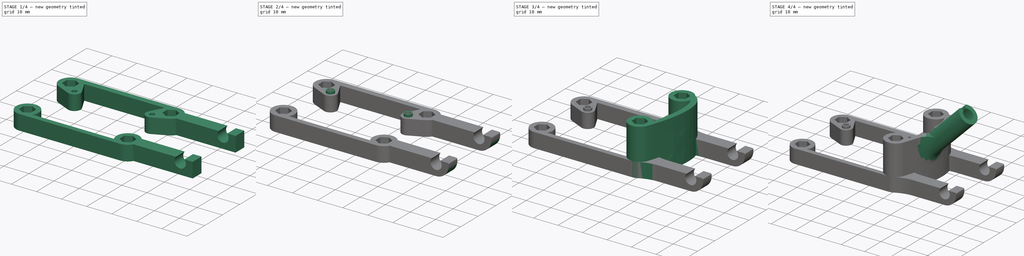
[diagram: build sequence overview — one tinted view per stage of 4, left to right]
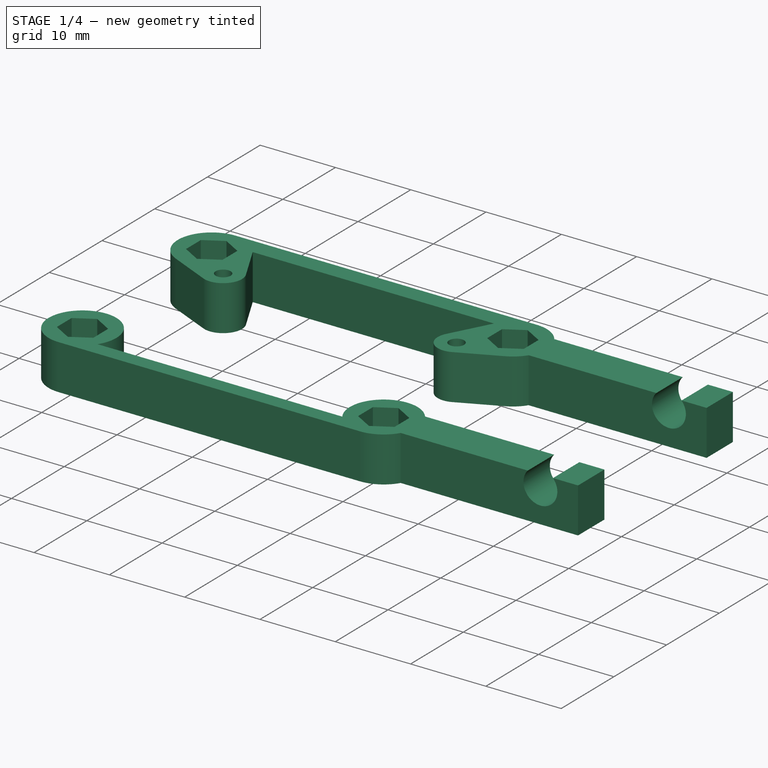
[diagram: stage 1 of 4 — iso view after this stage's code; geometry added in this stage tinted green]
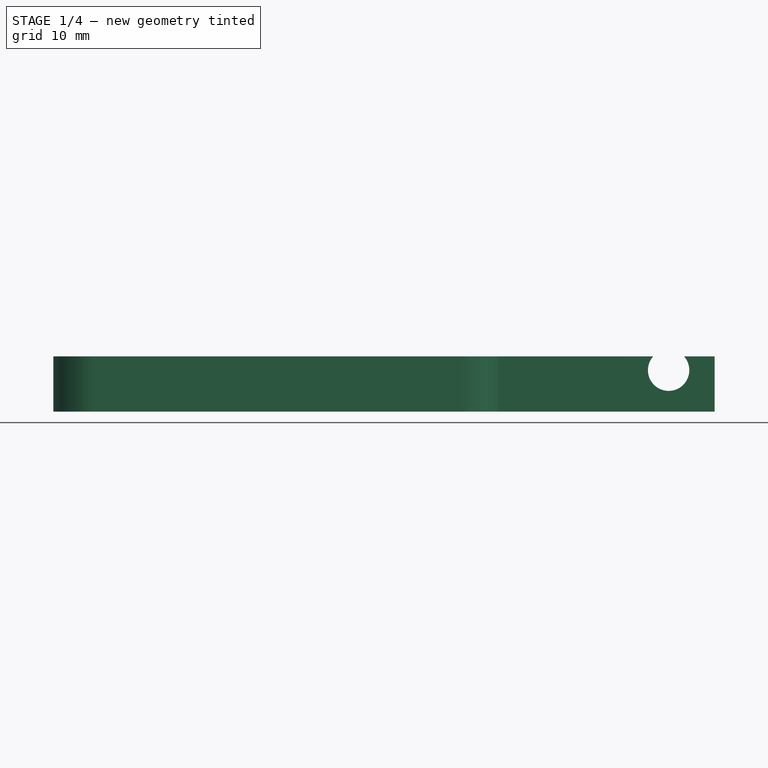
[diagram: stage 1 of 4 — front view after this stage's code; geometry added in this stage tinted green]
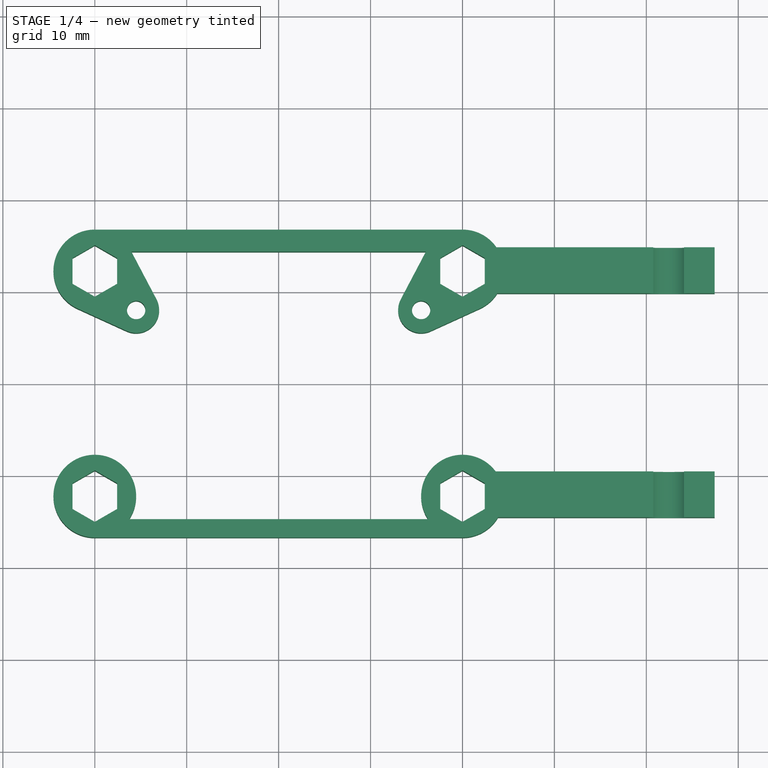
[diagram: stage 1 of 4 — top view after this stage's code; geometry added in this stage tinted green]
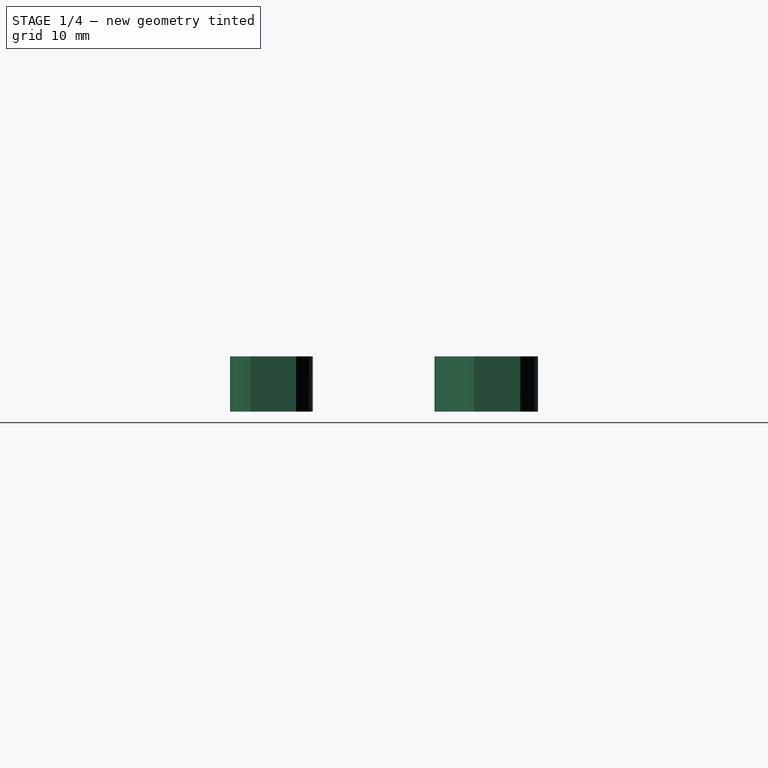
[diagram: stage 1 of 4 — right view after this stage's code; geometry added in this stage tinted green]
FCSTD DOCUMENT  (FreeCAD 1.0R39285 (Git))
Label: vtxHolderV3
License: All rights reserved
LicenseURL: https://en.wikipedia.org/wiki/All_rights_reserved
objects: Sketcher::SketchObject×8, PartDesign::Pad×5, PartDesign::Fillet×5, PartDesign::SubShapeBinder×2, PartDesign::Pocket×2, PartDesign::Body×2
note: 56 computed .brp shape members not serialized (recipe doc carries the construction recipe); baked Part::Feature solids carry a one-line shape summary decoded from their .brp

FEATURE [PartDesign::Body] Body001  label="VtxAntennaHolder"
  AllowCompound = true
  Group = -> [Binder,Sketch002,Pad,Sketch003,Pad001,Sketch004,Pocket,Fillet]
  Origin = -> Origin001
  Tip = -> Fillet
FEATURE [PartDesign::SubShapeBinder] Binder001
  BindCopyOnChange = 0
  BindMode = 0
  ClaimChildren = false
  Context = -> Body [Binder001.]
  Fuse = false
  MakeFace = false
  OffsetFill = false
  OffsetIntersection = false
  OffsetJoinType = 0
  OffsetOpenResult = false
  PartialLoad = false
  Refine = true
  Relative = true
  Support = -> [Sketch]
  _Version = 2
FEATURE [Sketcher::SketchObject] Sketch005
  ArcFitTolerance = 1e-06
  AttachmentSupport = -> [XY_Plane]
  ExternalGeometry = -> [Binder001]
  FullyConstrained = true
  MakeInternals = false
  MapMode = 5
  sketch-geometry (44):
    g0: ArcOfCircle CenterX=-20 CenterY=12.25 CenterZ=0 NormalX=0 NormalY=0 NormalZ=1 AngleXU=0 Radius=4.5 StartAngle=1.5708 EndAngle=4.28458
    g1: ArcOfCircle CenterX=-15.5 CenterY=8 CenterZ=0 NormalX=0 NormalY=0 NormalZ=1 AngleXU=0 Radius=2.5 StartAngle=4.28458 EndAngle=6.76813
    g2: LineSegment StartX=-16.0188 StartY=14.3477 StartZ=0 EndX=-13.2882 EndY=9.16539 EndZ=0
    g3: LineSegment StartX=-21.867 StartY=8.15556 StartZ=0 EndX=-16.5372 EndY=5.72531 EndZ=0
    g4: LineSegment StartX=-17.5751 StartY=13.65 StartZ=0 EndX=-20 EndY=15.05 EndZ=0
    g5: LineSegment StartX=-20 StartY=15.05 StartZ=0 EndX=-22.4249 EndY=13.65 EndZ=0
    g6: LineSegment StartX=-22.4249 StartY=13.65 StartZ=0 EndX=-22.4249 EndY=10.85 EndZ=0
    g7: LineSegment StartX=-22.4249 StartY=10.85 StartZ=0 EndX=-20 EndY=9.45 EndZ=0
    g8: LineSegment StartX=-20 StartY=9.45 StartZ=0 EndX=-17.5751 EndY=10.85 EndZ=0
    g9: LineSegment StartX=-17.5751 StartY=10.85 StartZ=0 EndX=-17.5751 EndY=13.65 EndZ=0
    g10: Circle [constr] CenterX=-20 CenterY=12.25 CenterZ=0 NormalX=0 NormalY=0 NormalZ=1 AngleXU=0 Radius=2.8
    g11: Circle CenterX=-15.5 CenterY=8 CenterZ=0 NormalX=0 NormalY=0 NormalZ=1 AngleXU=0 Radius=1
    g12: ArcOfCircle CenterX=20 CenterY=12.25 CenterZ=0 NormalX=0 NormalY=0 NormalZ=1 AngleXU=0 Radius=4.5 StartAngle=5.1402 EndAngle=7.85399
    g13: ArcOfCircle CenterX=15.5 CenterY=8 CenterZ=0 NormalX=0 NormalY=0 NormalZ=1 AngleXU=0 Radius=2.5 StartAngle=2.65665 EndAngle=5.1402
    g14: LineSegment StartX=21.867 StartY=8.15556 StartZ=0 EndX=16.5372 EndY=5.72531 EndZ=0
    g15: LineSegment StartX=16.0188 StartY=14.3477 StartZ=0 EndX=13.2882 EndY=9.16539 EndZ=0
    g16: Circle CenterX=15.5 CenterY=8 CenterZ=0 NormalX=0 NormalY=0 NormalZ=1 AngleXU=0 Radius=1
    g17: LineSegment StartX=22.4249 StartY=13.65 StartZ=0 EndX=20 EndY=15.05 EndZ=0
    g18: LineSegment StartX=20 StartY=15.05 StartZ=0 EndX=17.5751 EndY=13.65 EndZ=0
    g19: LineSegment StartX=17.5751 StartY=13.65 StartZ=0 EndX=17.5751 EndY=10.85 EndZ=0
    g20: LineSegment StartX=17.5751 StartY=10.85 StartZ=0 EndX=20 EndY=9.45 EndZ=0
    g21: LineSegment StartX=20 StartY=9.45 StartZ=0 EndX=22.4249 EndY=10.85 EndZ=0
    g22: LineSegment StartX=22.4249 StartY=10.85 StartZ=0 EndX=22.4249 EndY=13.65 EndZ=0
    g23: Circle [constr] CenterX=20 CenterY=12.25 CenterZ=0 NormalX=0 NormalY=0 NormalZ=1 AngleXU=0 Radius=2.8
    g24: ArcOfCircle CenterX=-20 CenterY=-12.25 CenterZ=0 NormalX=0 NormalY=0 NormalZ=1 AngleXU=0 Radius=4.5 StartAngle=5.69415 EndAngle=10.9956
    g25: ArcOfCircle CenterX=20 CenterY=-12.25 CenterZ=0 NormalX=0 NormalY=0 NormalZ=1 AngleXU=0 Radius=4.5 StartAngle=4.71239 EndAngle=10.0138
    g26: LineSegment StartX=-17.5751 StartY=-10.85 StartZ=0 EndX=-20 EndY=-9.45 EndZ=0
    g27: LineSegment StartX=-20 StartY=-9.45 StartZ=0 EndX=-22.4249 EndY=-10.85 EndZ=0
    g28: LineSegment StartX=-22.4249 StartY=-10.85 StartZ=0 EndX=-22.4249 EndY=-13.65 EndZ=0
    g29: LineSegment StartX=-22.4249 StartY=-13.65 StartZ=0 EndX=-20 EndY=-15.05 EndZ=0
    g30: LineSegment StartX=-20 StartY=-15.05 StartZ=0 EndX=-17.5751 EndY=-13.65 EndZ=0
    g31: LineSegment StartX=-17.5751 StartY=-13.65 StartZ=0 EndX=-17.5751 EndY=-10.85 EndZ=0
    g32: Circle [constr] CenterX=-20 CenterY=-12.25 CenterZ=0 NormalX=0 NormalY=0 NormalZ=1 AngleXU=0 Radius=2.8
    g33: LineSegment StartX=22.4249 StartY=-10.85 StartZ=0 EndX=20 EndY=-9.45 EndZ=0
    g34: LineSegment StartX=20 StartY=-9.45 StartZ=0 EndX=17.5751 EndY=-10.85 EndZ=0
    g35: LineSegment StartX=17.5751 StartY=-10.85 StartZ=0 EndX=17.5751 EndY=-13.65 EndZ=0
    g36: LineSegment StartX=17.5751 StartY=-13.65 StartZ=0 EndX=20 EndY=-15.05 EndZ=0
    g37: LineSegment StartX=20 StartY=-15.05 StartZ=0 EndX=22.4249 EndY=-13.65 EndZ=0
    g38: LineSegment StartX=22.4249 StartY=-13.65 StartZ=0 EndX=22.4249 EndY=-10.85 EndZ=0
    g39: Circle [constr] CenterX=20 CenterY=-12.25 CenterZ=0 NormalX=0 NormalY=0 NormalZ=1 AngleXU=0 Radius=2.8
    g40: LineSegment StartX=-20 StartY=-16.75 StartZ=0 EndX=20 EndY=-16.75 EndZ=0
    g41: LineSegment StartX=-16.2583 StartY=-14.75 StartZ=0 EndX=16.2583 EndY=-14.75 EndZ=0
    g42: LineSegment StartX=-20 StartY=16.75 StartZ=0 EndX=20 EndY=16.75 EndZ=0
    g43: LineSegment StartX=-16.0188 StartY=14.3477 StartZ=0 EndX=16.0188 EndY=14.3477 EndZ=0
  constraints (96):
    c: Tangent(g0,g3) = -1.5708
    c: Tangent(g1,g2) = 1.5708
    c: Tangent(g1,g3) = -1.5708
    c: Coincident(g0,g-6)
    c: Coincident(g1,g-4)
    c: Equal(g0,g-6)
    c: Equal(g1,g-4)
    c: Coincident(g4,g5)
    c: Coincident(g5,g6)
    c: Coincident(g6,g7)
    c: Coincident(g7,g8)
    c: Coincident(g8,g9)
    c: Coincident(g9,g4)
    c: Equal(g4, g5-g9) x5
    c: PointOnObject(g4,g10)
    c: PointOnObject(g5,g10)
    c: PointOnObject(g6,g10)
    c: PointOnObject(g7,g10)
    c: PointOnObject(g8,g10)
    c: PointOnObject(g9,g10)
    c: Coincident(g10,g0)
    c: Coincident(g9,g-7)
    c: Coincident(g11,g-8)
    c: Equal(g11,g-8)
    c: Tangent(g12,g14) = 1.5708
    c: Tangent(g13,g14) = 1.5708
    c: Tangent(g13,g15) = -1.5708
    c: Coincident(g12,g-9)
    c: Coincident(g13,g-11)
    c: Equal(g12,g-9)
    c: Equal(g13,g-11)
    c: Equal(g16,g-10)
    c: Coincident(g16,g13)
    c: Coincident(g17,g18)
    c: Coincident(g18,g19)
    c: Coincident(g19,g20)
    c: Coincident(g20,g21)
    c: Coincident(g21,g22)
    c: Coincident(g22,g17)
    c: Equal(g17, g18-g22) x5
    c: PointOnObject(g17,g23)
    c: PointOnObject(g18,g23)
    c: PointOnObject(g19,g23)
    c: PointOnObject(g20,g23)
    c: PointOnObject(g21,g23)
    c: PointOnObject(g22,g23)
    c: Coincident(g23,g12)
    c: Coincident(g22,g-12)
    c: Coincident(g24,g-16)
    c: Equal(g24,g-16)
    c: Coincident(g25,g-13)
    c: Equal(g25,g-13)
    c: Coincident(g26,g27)
    c: Coincident(g27,g28)
    c: Coincident(g28,g29)
    c: Coincident(g29,g30)
    c: Coincident(g30,g31)
    c: Coincident(g31,g26)
    c: Equal(g26, g27-g31) x5
    c: PointOnObject(g26,g32)
    c: PointOnObject(g27,g32)
    c: PointOnObject(g28,g32)
    c: PointOnObject(g29,g32)
    c: PointOnObject(g30,g32)
    c: PointOnObject(g31,g32)
    c: Coincident(g32,g24)
    c: Coincident(g31,g-15)
    c: Coincident(g33,g34)
    c: Coincident(g34,g35)
    c: Coincident(g35,g36)
    c: Coincident(g36,g37)
    c: Coincident(g37,g38)
    c: Coincident(g38,g33)
    c: Equal(g33, g34-g38) x5
    c: PointOnObject(g33,g39)
    c: PointOnObject(g34,g39)
    c: PointOnObject(g35,g39)
    c: PointOnObject(g36,g39)
    c: PointOnObject(g37,g39)
    c: PointOnObject(g38,g39)
    c: Coincident(g39,g25)
    c: Coincident(g38,g-14)
    c: Horizontal(g41)
    c: Distance(g40,g41) = 2
    c: Coincident(g25,g41)
    c: Coincident(g25,g40)
    c: Tangent(g24,g40) = -1.5708
    c: Coincident(g24,g41)
    c: Horizontal(g40)
    c: Horizontal(g42)
    c: Coincident(g12,g42)
    c: Tangent(g0,g42) = 1.5708
    c: Coincident(g15,g43)
    c: Coincident(g15,g-9)
    c: Coincident(g2,g43)
    c: Coincident(g2,g-6)
FEATURE [PartDesign::Pad] Pad002
  Direction = (0,0,1)
  Length = 6
  Length2 = 10
  Profile = -> Sketch005
  ReferenceAxis = -> Sketch005 [N_Axis]
  Refine = true
  Suppressed = false
  Type = 0
FEATURE [Sketcher::SketchObject] Sketch006
  ArcFitTolerance = 1e-06
  AttachmentSupport = -> [Pad002]
  ExternalGeometry = -> [Pad002]
  FullyConstrained = false
  MakeInternals = false
  MapMode = 45
  Placement = pos=(22.4249,-1.8e-15,3) rot=(0.707107,0,0.707107;3.14159rad)
  sketch-geometry (8):
    g0: LineSegment StartX=-3 StartY=-9.82109 StartZ=0 EndX=-3 EndY=-14.8211 EndZ=0
    g1: LineSegment StartX=-3 StartY=-14.8211 StartZ=0 EndX=3 EndY=-14.8211 EndZ=0
    g2: LineSegment StartX=3 StartY=-14.8211 StartZ=0 EndX=3 EndY=-9.82109 EndZ=0
    g3: LineSegment StartX=3 StartY=-9.82109 StartZ=0 EndX=-3 EndY=-9.82109 EndZ=0
    g4: LineSegment StartX=-3 StartY=14.5563 StartZ=0 EndX=-3 EndY=9.55633 EndZ=0
    g5: LineSegment StartX=-3 StartY=9.55633 StartZ=0 EndX=3 EndY=9.55633 EndZ=0
    g6: LineSegment StartX=3 StartY=9.55633 StartZ=0 EndX=3 EndY=14.5563 EndZ=0
    g7: LineSegment StartX=3 StartY=14.5563 StartZ=0 EndX=-3 EndY=14.5563 EndZ=0
  constraints (22):
    c: Coincident(g0,g1)
    c: Coincident(g1,g2)
    c: Coincident(g2,g3)
    c: Coincident(g3,g0)
    c: Vertical(g0)
    c: Vertical(g2)
    c: Horizontal(g1)
    c: Horizontal(g3)
    c: PointOnObject(g-5,g0)
    c: PointOnObject(g-6,g2)
    c: DistanceY(g2,g2) = 5
    c: Coincident(g4,g5)
    c: Coincident(g5,g6)
    c: Coincident(g6,g7)
    c: Coincident(g7,g4)
    c: Vertical(g4)
    c: Vertical(g6)
    c: Horizontal(g5)
    c: Horizontal(g7)
    c: Equal(g2,g6)
    c: PointOnObject(g-3,g4)
    c: PointOnObject(g-4,g6)
FEATURE [PartDesign::Pad] Pad003
  BaseFeature = -> Pad002
  Direction = (1,0,-2e-16)
  Length = 25
  Length2 = 10
  Profile = -> Sketch006
  ReferenceAxis = -> Sketch006 [N_Axis]
  Refine = true
  Suppressed = false
  Type = 0
FEATURE [Sketcher::SketchObject] Sketch007
  ArcFitTolerance = 1e-06
  AttachmentSupport = -> [Pad003]
  ExternalGeometry = -> [Pad003]
  FullyConstrained = true
  MakeInternals = false
  MapMode = 5
  Placement = pos=(0,-14.5563,0) rot=(1,0,0;1.5708rad)
  sketch-geometry (1):
    g0: Circle CenterX=42.4249 CenterY=4.5 CenterZ=0 NormalX=0 NormalY=0 NormalZ=1 AngleXU=0 Radius=2.25
  constraints (3):
    c: Diameter(g0) = 4.5
    c: Distance(g0,g-3) = 5
    c: Distance(g0,g-1) = 4.5
FEATURE [PartDesign::Pocket] Pocket001
  BaseFeature = -> Pad003
  Direction = (0,1,-2e-16)
  Length = 0
  Length2 = 5
  Profile = -> Sketch007
  ReferenceAxis = -> Sketch007 [N_Axis]
  Refine = true
  Suppressed = false
  Type = 3
  UpToFace = -> Pad003 [Face12]
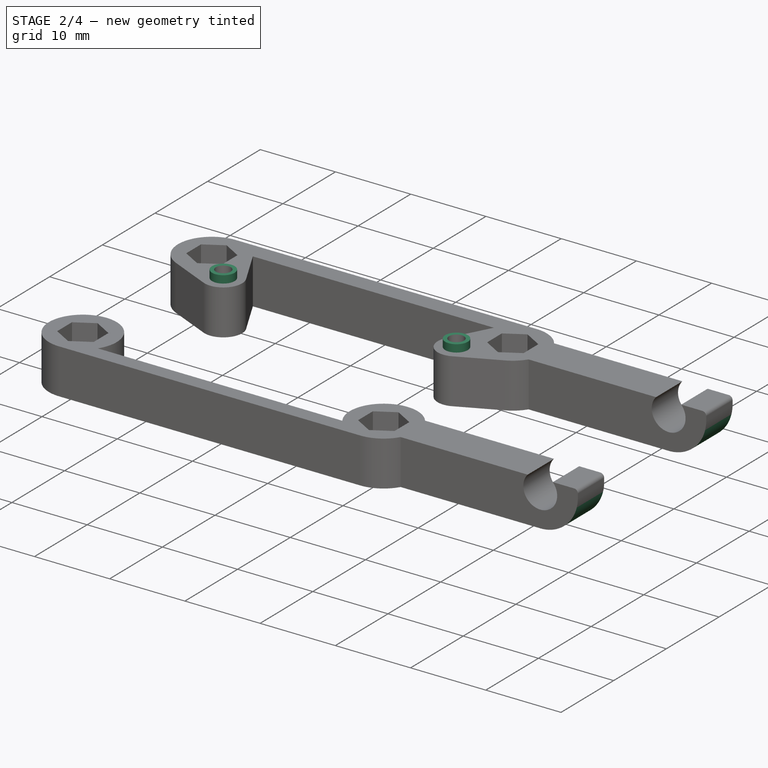
[diagram: stage 2 of 4 — iso view after this stage's code; geometry added in this stage tinted green]
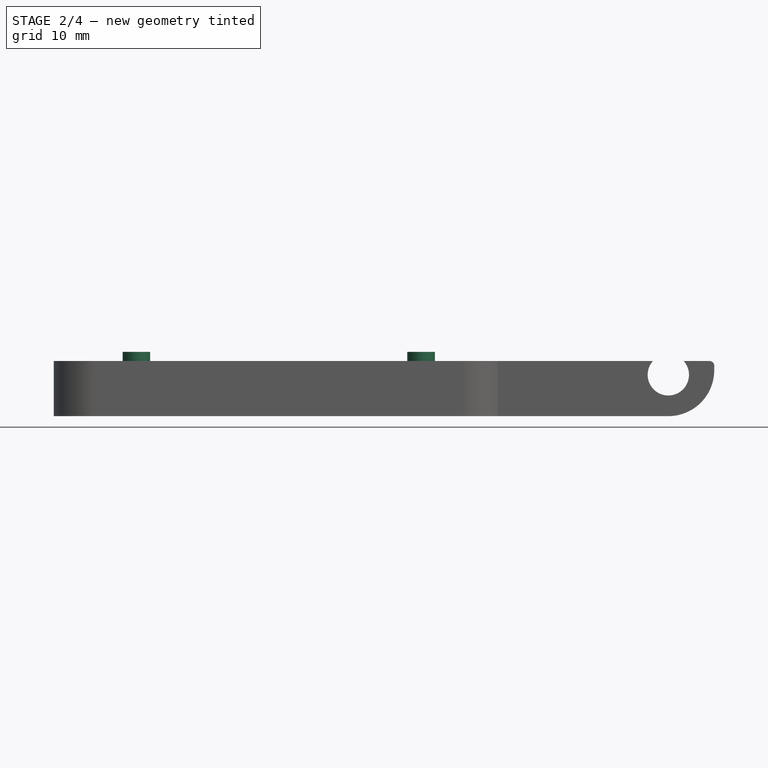
[diagram: stage 2 of 4 — front view after this stage's code; geometry added in this stage tinted green]
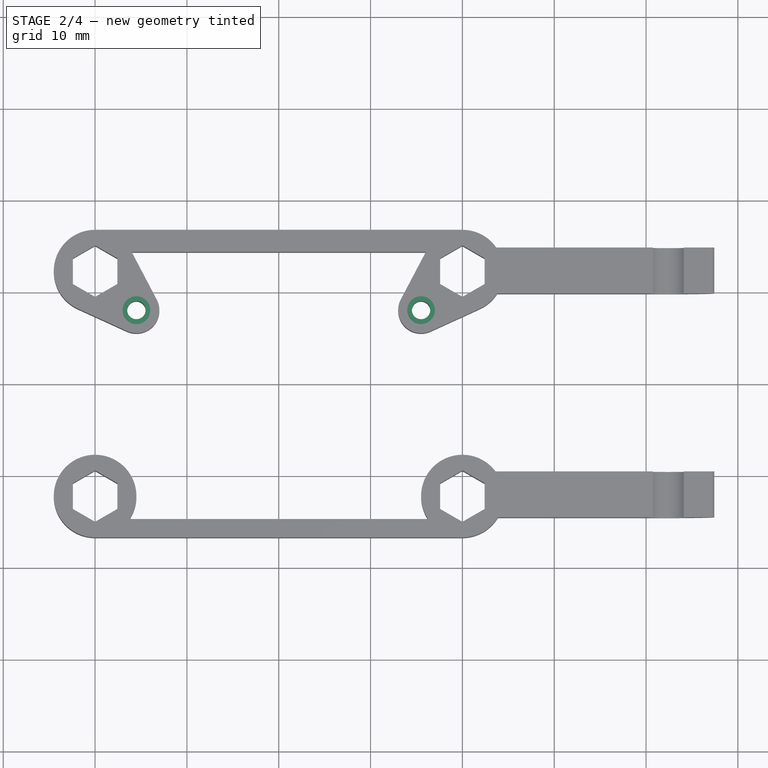
[diagram: stage 2 of 4 — top view after this stage's code; geometry added in this stage tinted green]
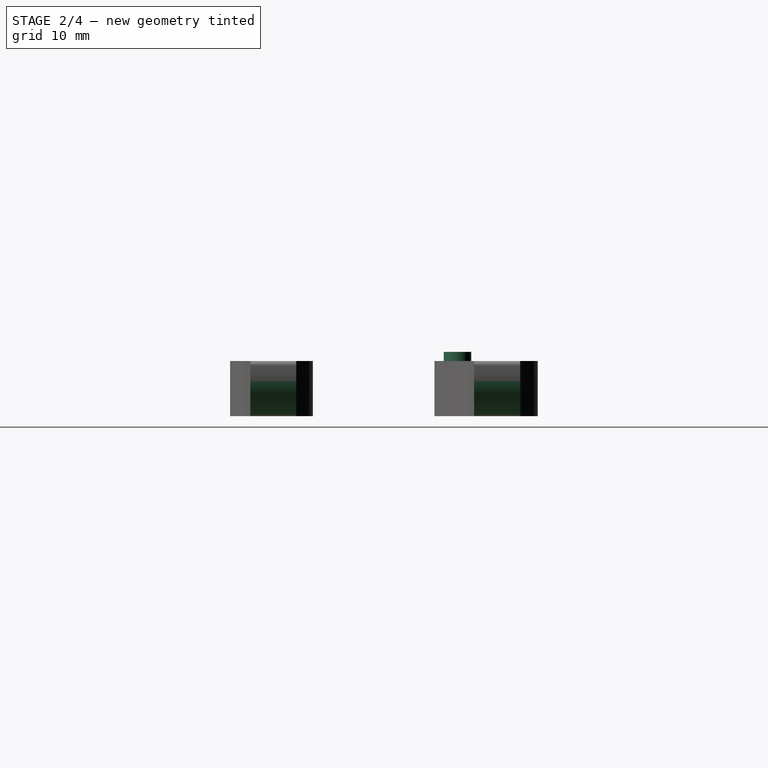
[diagram: stage 2 of 4 — right view after this stage's code; geometry added in this stage tinted green]
FEATURE [PartDesign::Fillet] Fillet001
  Base = -> Pocket001 [Edge105,Edge8]
  BaseFeature = -> Pocket001
  Radius = 5
  Refine = true
  SupportTransform = false
  Suppressed = false
  UseAllEdges = false
FEATURE [PartDesign::Fillet] Fillet002
  Base = -> Fillet001 [Edge69,Edge164]
  BaseFeature = -> Fillet001
  Radius = 0.5
  Refine = true
  SupportTransform = false
  Suppressed = false
  UseAllEdges = false
FEATURE [Sketcher::SketchObject] Sketch008
  ArcFitTolerance = 1e-06
  FullyConstrained = true
  MakeInternals = false
  MapMode = 5
  Placement = pos=(0,0,6) rot=(0,0,1;0rad)
  sketch-geometry (4):
    g0: Circle CenterX=-15.5 CenterY=8 CenterZ=0 NormalX=0 NormalY=0 NormalZ=1 AngleXU=0 Radius=1
    g1: Circle CenterX=15.5 CenterY=8 CenterZ=0 NormalX=0 NormalY=0 NormalZ=1 AngleXU=0 Radius=1
    g2: Circle CenterX=15.5 CenterY=8 CenterZ=0 NormalX=0 NormalY=0 NormalZ=1 AngleXU=0 Radius=1.5
    g3: Circle CenterX=-15.5 CenterY=8 CenterZ=0 NormalX=0 NormalY=0 NormalZ=1 AngleXU=0 Radius=1.5
  constraints (8):
    c: Coincident(g0,g-3)
    c: Equal(g0,g-3)
    c: Coincident(g1,g-4)
    c: Equal(g1,g-4)
    c: Diameter(g2) = 3
    c: Coincident(g2,g1)
    c: Coincident(g3,g0)
    c: Equal(g2,g3)
FEATURE [PartDesign::Pad] Pad004
  BaseFeature = -> Fillet002
  Direction = (0,0,1)
  Length = 1
  Length2 = 10
  Profile = -> Sketch008
  ReferenceAxis = -> Sketch008 [N_Axis]
  Refine = true
  Suppressed = false
  Type = 0
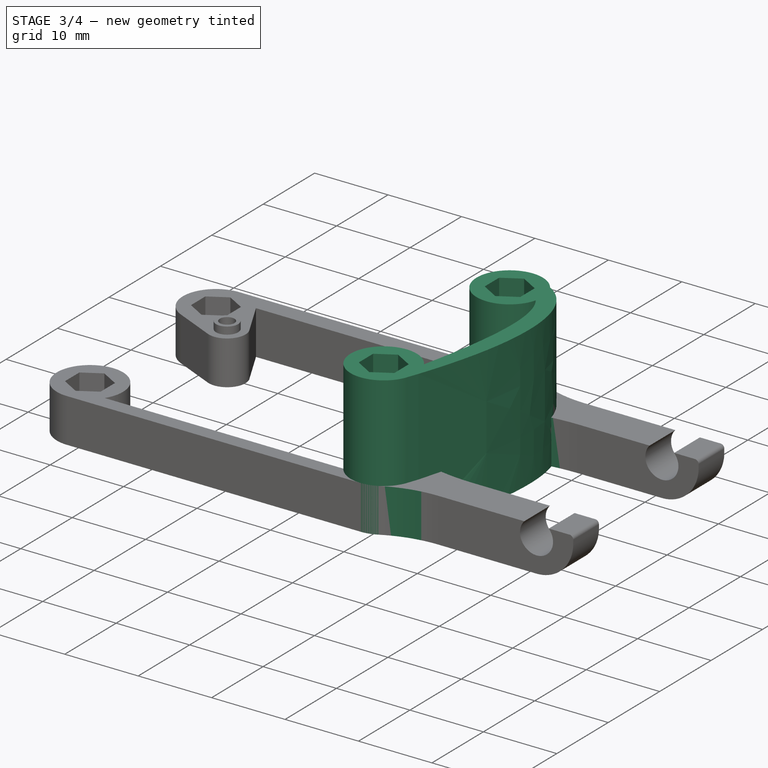
[diagram: stage 3 of 4 — iso view after this stage's code; geometry added in this stage tinted green]
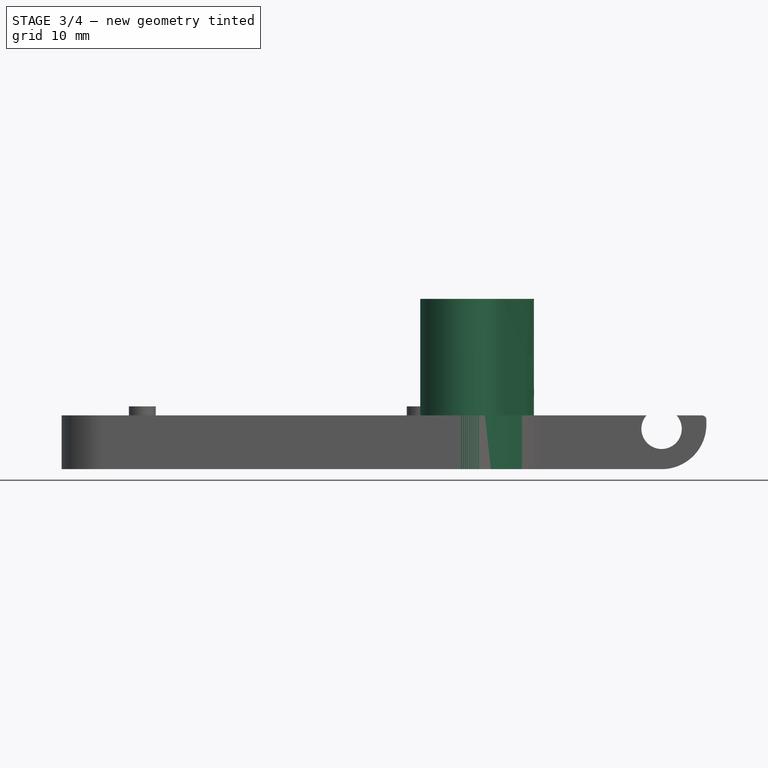
[diagram: stage 3 of 4 — front view after this stage's code; geometry added in this stage tinted green]
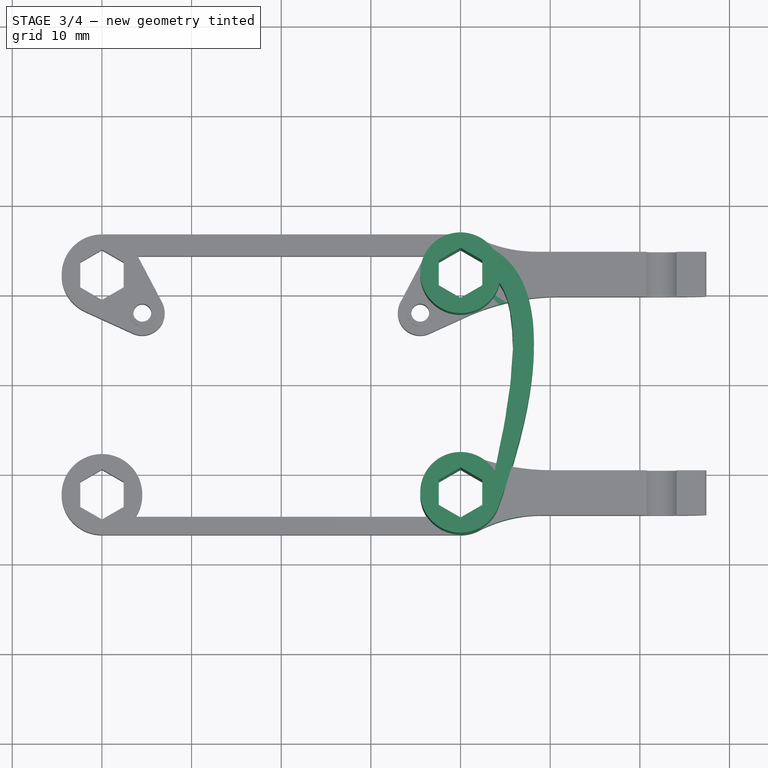
[diagram: stage 3 of 4 — top view after this stage's code; geometry added in this stage tinted green]
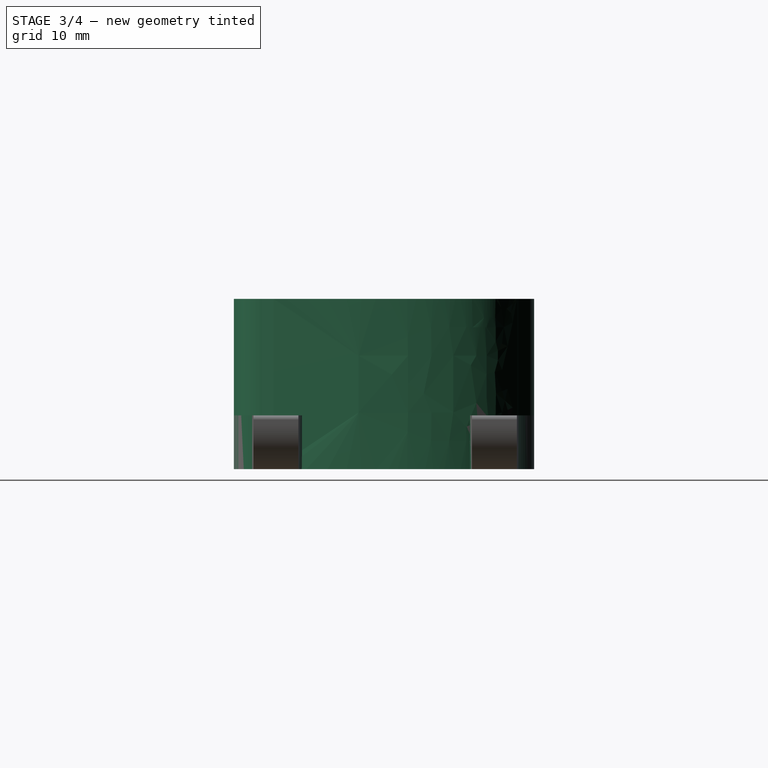
[diagram: stage 3 of 4 — right view after this stage's code; geometry added in this stage tinted green]
FEATURE [Sketcher::SketchObject] Sketch  label="MasterSketch"
  ArcFitTolerance = 1e-06
  FullyConstrained = true
  MakeInternals = false
  MapMode = 5
  sketch-geometry (62):
    g0: LineSegment [constr] StartX=-20 StartY=12.25 StartZ=0 EndX=-20 EndY=-12.25 EndZ=0
    g1: LineSegment [constr] StartX=-20 StartY=-12.25 StartZ=0 EndX=20 EndY=-12.25 EndZ=0
    g2: LineSegment [constr] StartX=20 StartY=-12.25 StartZ=0 EndX=20 EndY=12.25 EndZ=0
    g3: LineSegment [constr] StartX=20 StartY=12.25 StartZ=0 EndX=-20 EndY=12.25 EndZ=0
    g4: LineSegment StartX=20 StartY=15.05 StartZ=0 EndX=17.5751 EndY=13.65 EndZ=0
    g5: LineSegment StartX=17.5751 StartY=13.65 StartZ=0 EndX=17.5751 EndY=10.85 EndZ=0
    g6: LineSegment StartX=17.5751 StartY=10.85 StartZ=0 EndX=20 EndY=9.45 EndZ=0
    g7: LineSegment StartX=20 StartY=9.45 StartZ=0 EndX=22.4249 EndY=10.85 EndZ=0
    g8: LineSegment StartX=22.4249 StartY=10.85 StartZ=0 EndX=22.4249 EndY=13.65 EndZ=0
    g9: LineSegment StartX=22.4249 StartY=13.65 StartZ=0 EndX=20 EndY=15.05 EndZ=0
    g10: Circle [constr] CenterX=20 CenterY=12.25 CenterZ=0 NormalX=0 NormalY=0 NormalZ=1 AngleXU=0 Radius=2.8
    g11: LineSegment StartX=-20 StartY=15.05 StartZ=0 EndX=-22.4249 EndY=13.65 EndZ=0
    g12: LineSegment StartX=-22.4249 StartY=13.65 StartZ=0 EndX=-22.4249 EndY=10.85 EndZ=0
    g13: LineSegment StartX=-22.4249 StartY=10.85 StartZ=0 EndX=-20 EndY=9.45 EndZ=0
    g14: LineSegment StartX=-20 StartY=9.45 StartZ=0 EndX=-17.5751 EndY=10.85 EndZ=0
    g15: LineSegment StartX=-17.5751 StartY=10.85 StartZ=0 EndX=-17.5751 EndY=13.65 EndZ=0
    g16: LineSegment StartX=-17.5751 StartY=13.65 StartZ=0 EndX=-20 EndY=15.05 EndZ=0
    g17: Circle [constr] CenterX=-20 CenterY=12.25 CenterZ=0 NormalX=0 NormalY=0 NormalZ=1 AngleXU=0 Radius=2.8
    g18: LineSegment StartX=-20 StartY=-15.05 StartZ=0 EndX=-17.5751 EndY=-13.65 EndZ=0
    g19: LineSegment StartX=-17.5751 StartY=-13.65 StartZ=0 EndX=-17.5751 EndY=-10.85 EndZ=0
    g20: LineSegment StartX=-17.5751 StartY=-10.85 StartZ=0 EndX=-20 EndY=-9.45 EndZ=0
    g21: LineSegment StartX=-20 StartY=-9.45 StartZ=0 EndX=-22.4249 EndY=-10.85 EndZ=0
    g22: LineSegment StartX=-22.4249 StartY=-10.85 StartZ=0 EndX=-22.4249 EndY=-13.65 EndZ=0
    g23: LineSegment StartX=-22.4249 StartY=-13.65 StartZ=0 EndX=-20 EndY=-15.05 EndZ=0
    g24: Circle [constr] CenterX=-20 CenterY=-12.25 CenterZ=0 NormalX=0 NormalY=0 NormalZ=1 AngleXU=0 Radius=2.8
    g25: LineSegment StartX=20 StartY=-15.05 StartZ=0 EndX=22.4249 EndY=-13.65 EndZ=0
    g26: LineSegment StartX=22.4249 StartY=-13.65 StartZ=0 EndX=22.4249 EndY=-10.85 EndZ=0
    g27: LineSegment StartX=22.4249 StartY=-10.85 StartZ=0 EndX=20 EndY=-9.45 EndZ=0
    g28: LineSegment StartX=20 StartY=-9.45 StartZ=0 EndX=17.5751 EndY=-10.85 EndZ=0
    g29: LineSegment StartX=17.5751 StartY=-10.85 StartZ=0 EndX=17.5751 EndY=-13.65 EndZ=0
    g30: LineSegment StartX=17.5751 StartY=-13.65 StartZ=0 EndX=20 EndY=-15.05 EndZ=0
    g31: Circle [constr] CenterX=20 CenterY=-12.25 CenterZ=0 NormalX=0 NormalY=0 NormalZ=1 AngleXU=0 Radius=2.8
    g32: LineSegment [constr] StartX=-18 StartY=10 StartZ=0 EndX=-18 EndY=-10 EndZ=0
    g33: LineSegment [constr] StartX=-17 StartY=-11 StartZ=0 EndX=17 EndY=-11 EndZ=0
    g34: LineSegment [constr] StartX=18 StartY=-10 StartZ=0 EndX=18 EndY=10 EndZ=0
    g35: LineSegment [constr] StartX=17 StartY=11 StartZ=0 EndX=-17 EndY=11 EndZ=0
    g36: ArcOfCircle [constr] CenterX=-17 CenterY=10 CenterZ=0 NormalX=0 NormalY=0 NormalZ=1 AngleXU=0 Radius=1 StartAngle=1.5708 EndAngle=3.14159
    g37: ArcOfCircle [constr] CenterX=-17 CenterY=-10 CenterZ=0 NormalX=0 NormalY=0 NormalZ=1 AngleXU=0 Radius=1 StartAngle=3.14159 EndAngle=4.71239
    g38: ArcOfCircle [constr] CenterX=17 CenterY=-10 CenterZ=0 NormalX=0 NormalY=0 NormalZ=1 AngleXU=0 Radius=1 StartAngle=4.71239 EndAngle=6.28319
    g39: ArcOfCircle [constr] CenterX=17 CenterY=10 CenterZ=0 NormalX=0 NormalY=0 NormalZ=1 AngleXU=0 Radius=1 StartAngle=5e-16 EndAngle=1.5708
    g40: GeomPoint [constr] X=-18 Y=11 Z=0
    g41: GeomPoint [constr] X=18 Y=-11 Z=0
    g42: LineSegment [constr] StartX=18 StartY=6 StartZ=0 EndX=18 EndY=1 EndZ=0
    g43: LineSegment StartX=18 StartY=1 StartZ=0 EndX=24 EndY=1 EndZ=0
    g44: LineSegment StartX=24 StartY=1 StartZ=0 EndX=24 EndY=6 EndZ=0
    g45: LineSegment StartX=24 StartY=6 StartZ=0 EndX=18 EndY=6 EndZ=0
    g46: LineSegment [constr] StartX=20 StartY=1 StartZ=0 EndX=20 EndY=-4 EndZ=0
    g47: LineSegment StartX=20 StartY=-4 StartZ=0 EndX=23 EndY=-4 EndZ=0
    g48: LineSegment StartX=23 StartY=-4 StartZ=0 EndX=23 EndY=1 EndZ=0
    g49: LineSegment [constr] StartX=23 StartY=1 StartZ=0 EndX=20 EndY=1 EndZ=0
    g50: Circle CenterX=-15.5 CenterY=8 CenterZ=0 NormalX=0 NormalY=0 NormalZ=1 AngleXU=0 Radius=1
    g51: Circle CenterX=15.5 CenterY=8 CenterZ=0 NormalX=0 NormalY=0 NormalZ=1 AngleXU=0 Radius=1
    g52: ArcOfCircle CenterX=-20 CenterY=12.25 CenterZ=0 NormalX=0 NormalY=0 NormalZ=1 AngleXU=0 Radius=4.5 StartAngle=0.484941 EndAngle=4.28458
    g53: ArcOfCircle CenterX=-15.5 CenterY=8 CenterZ=0 NormalX=0 NormalY=0 NormalZ=1 AngleXU=0 Radius=2.5 StartAngle=4.28458 EndAngle=6.76813
    g54: LineSegment StartX=-16.0188 StartY=14.3477 StartZ=0 EndX=-13.2882 EndY=9.16539 EndZ=0
    g55: LineSegment StartX=-21.867 StartY=8.15556 StartZ=0 EndX=-16.5372 EndY=5.72531 EndZ=0
    g56: ArcOfCircle CenterX=20 CenterY=12.25 CenterZ=0 NormalX=0 NormalY=0 NormalZ=1 AngleXU=0 Radius=4.5 StartAngle=5.1402 EndAngle=8.93984
    g57: ArcOfCircle CenterX=15.5 CenterY=8 CenterZ=0 NormalX=0 NormalY=0 NormalZ=1 AngleXU=0 Radius=2.5 StartAngle=2.65665 EndAngle=5.1402
    g58: LineSegment StartX=21.867 StartY=8.15556 StartZ=0 EndX=16.5372 EndY=5.72531 EndZ=0
    g59: LineSegment StartX=16.0188 StartY=14.3477 StartZ=0 EndX=13.2882 EndY=9.16539 EndZ=0
    g60: Circle CenterX=-20 CenterY=-12.25 CenterZ=0 NormalX=0 NormalY=0 NormalZ=1 AngleXU=0 Radius=4.5
    g61: Circle CenterX=20 CenterY=-12.25 CenterZ=0 NormalX=0 NormalY=0 NormalZ=1 AngleXU=0 Radius=4.5
  constraints (148):
    c: Coincident(g0,g1)
    c: Coincident(g1,g2)
    c: Coincident(g2,g3)
    c: Coincident(g3,g0)
    c: Vertical(g0)
    c: Vertical(g2)
    c: Horizontal(g1)
    c: Horizontal(g3)
    c: Symmetric(g2,g0,g-1)
    c: DistanceX(g3,g3) = 40
    c: DistanceY(g0,g0) = 24.5
    c: Coincident(g4,g5)
    c: Coincident(g5,g6)
    c: Coincident(g6,g7)
    c: Coincident(g7,g8)
    c: Coincident(g8,g9)
    c: Coincident(g9,g4)
    c: Equal(g4, g5-g9) x5
    c: PointOnObject(g4,g10)
    c: PointOnObject(g5,g10)
    c: PointOnObject(g6,g10)
    c: PointOnObject(g7,g10)
    c: PointOnObject(g8,g10)
    c: PointOnObject(g9,g10)
    c: Coincident(g10,g2)
    c: Diameter(g10) = 5.6
    c: Coincident(g11,g12)
    c: Coincident(g12,g13)
    c: Coincident(g13,g14)
    c: Coincident(g14,g15)
    c: Coincident(g15,g16)
    c: Coincident(g16,g11)
    c: Equal(g11, g12-g16) x5
    c: PointOnObject(g11,g17)
    c: PointOnObject(g12,g17)
    c: PointOnObject(g13,g17)
    c: PointOnObject(g14,g17)
    c: PointOnObject(g15,g17)
    c: PointOnObject(g16,g17)
    c: Coincident(g17,g0)
    c: Coincident(g18,g19)
    c: Coincident(g19,g20)
    c: Coincident(g20,g21)
    c: Coincident(g21,g22)
    c: Coincident(g22,g23)
    c: Coincident(g23,g18)
    c: Equal(g18, g19-g23) x5
    c: PointOnObject(g18,g24)
    c: PointOnObject(g19,g24)
    c: PointOnObject(g20,g24)
    c: PointOnObject(g21,g24)
    c: PointOnObject(g22,g24)
    c: PointOnObject(g23,g24)
    c: Coincident(g24,g0)
    c: Coincident(g25,g26)
    c: Coincident(g26,g27)
    c: Coincident(g27,g28)
    c: Coincident(g28,g29)
    c: Coincident(g29,g30)
    c: Coincident(g30,g25)
    c: Equal(g25, g26-g30) x5
    c: PointOnObject(g25,g31)
    c: PointOnObject(g26,g31)
    c: PointOnObject(g27,g31)
    c: PointOnObject(g28,g31)
    c: PointOnObject(g29,g31)
    c: PointOnObject(g30,g31)
    c: Coincident(g31,g1)
    c: Equal(g10,g17)
    c: Equal(g10,g24)
    c: Equal(g10,g31)
    c: PointOnObject(g20,g0)
    c: PointOnObject(g13,g0)
    c: PointOnObject(g6,g2)
    c: PointOnObject(g27,g2)
    c: Tangent(g32,g36) = -1.5708
    c: Tangent(g32,g37) = -1.5708
    c: Tangent(g33,g37) = -1.5708
    c: Tangent(g33,g38) = -1.5708
    c: Tangent(g34,g38) = -1.5708
    c: Tangent(g34,g39) = -1.5708
    c: Tangent(g35,g39) = -1.5708
    c: Tangent(g35,g36) = -1.5708
    c: Vertical(g32)
    c: Vertical(g34)
    c: Horizontal(g33)
    c: Horizontal(g35)
    c: Equal(g36,g37)
    c: Equal(g37,g38)
    c: Equal(g38,g39)
    c: PointOnObject(g40,g32)
    c: PointOnObject(g40,g35)
    c: PointOnObject(g41,g33)
    c: PointOnObject(g41,g34)
    c: Radius(g37) = 1
    c: Distance(g33,g35) = 22
    c: Distance(g34,g32) = 36
    c: Coincident(g42,g43)
    c: Coincident(g43,g44)
    c: Coincident(g44,g45)
    c: Coincident(g45,g42)
    c: Vertical(g42)
    c: Vertical(g44)
    c: Horizontal(g43)
    c: Horizontal(g45)
    c: PointOnObject(g42,g34)
    c: Distance(g45,g45) = 6
    c: DistanceY(g44,g44) = 5
    c: Distance(g42,g35) = 5
    c: Coincident(g46,g47)
    c: Coincident(g47,g48)
    c: Coincident(g48,g49)
    c: Coincident(g49,g46)
    c: Vertical(g46)
    c: Vertical(g48)
    c: Horizontal(g47)
    c: Horizontal(g49)
    c: Distance(g46,g48) = 3
    c: Distance(g47,g49) = 5
    c: PointOnObject(g48,g43)
    c: Distance(g48,g43) = 1
    c: Symmetric(g39,g37,g-1)
    c: Distance(g50,g32) = 2.5
    c: Distance(g50,g35) = 3
    c: Diameter(g50) = 2
    c: Equal(g50,g51)
    c: Distance(g51,g35) = 3
    c: Distance(g51,g34) = 2.5
    c: Tangent(g52,g54) = 1.5708
    c: Tangent(g52,g55) = -1.5708
    c: Tangent(g53,g54) = 1.5708
    c: Tangent(g53,g55) = -1.5708
    c: Radius(g52) = 4.5
    c: Coincident(g52,g0)
    c: Coincident(g53,g50)
    c: Radius(g53) = 2.5
    c: Tangent(g56,g58) = 1.5708
    c: Tangent(g56,g59) = -1.5708
    c: Tangent(g57,g58) = 1.5708
    c: Tangent(g57,g59) = -1.5708
    c: Coincident(g56,g2)
    c: Coincident(g57,g51)
    c: Equal(g53,g57)
    c: Coincident(g60,g0)
    c: Coincident(g61,g1)
    c: Equal(g52,g60)
    c: Equal(g52,g61)
    c: Equal(g52,g56)
FEATURE [PartDesign::SubShapeBinder] Binder
  BindCopyOnChange = 0
  BindMode = 0
  ClaimChildren = false
  Context = -> Body001 [Binder.]
  Fuse = false
  MakeFace = false
  OffsetFill = false
  OffsetIntersection = false
  OffsetJoinType = 0
  OffsetOpenResult = false
  PartialLoad = false
  Refine = true
  Relative = true
  Support = -> [Sketch]
  _Version = 2
FEATURE [Sketcher::SketchObject] Sketch002
  ArcFitTolerance = 1e-06
  AttachmentSupport = -> [XY_Plane001]
  ExternalGeometry = -> [Binder]
  FullyConstrained = false
  MakeInternals = false
  MapMode = 5
  sketch-geometry (32):
    g0: LineSegment StartX=22.4249 StartY=13.65 StartZ=0 EndX=20 EndY=15.05 EndZ=0
    g1: LineSegment StartX=20 StartY=15.05 StartZ=0 EndX=17.5751 EndY=13.65 EndZ=0
    g2: LineSegment StartX=17.5751 StartY=13.65 StartZ=0 EndX=17.5751 EndY=10.85 EndZ=0
    g3: LineSegment StartX=17.5751 StartY=10.85 StartZ=0 EndX=20 EndY=9.45 EndZ=0
    g4: LineSegment StartX=20 StartY=9.45 StartZ=0 EndX=22.4249 EndY=10.85 EndZ=0
    g5: LineSegment StartX=22.4249 StartY=10.85 StartZ=0 EndX=22.4249 EndY=13.65 EndZ=0
    g6: Circle [constr] CenterX=20 CenterY=12.25 CenterZ=0 NormalX=0 NormalY=0 NormalZ=1 AngleXU=0 Radius=2.8
    g7: LineSegment StartX=22.4249 StartY=-10.85 StartZ=0 EndX=20 EndY=-9.45 EndZ=0
    g8: LineSegment StartX=20 StartY=-9.45 StartZ=0 EndX=17.5751 EndY=-10.85 EndZ=0
    g9: LineSegment StartX=17.5751 StartY=-10.85 StartZ=0 EndX=17.5751 EndY=-13.65 EndZ=0
    g10: LineSegment StartX=17.5751 StartY=-13.65 StartZ=0 EndX=20 EndY=-15.05 EndZ=0
    g11: LineSegment StartX=20 StartY=-15.05 StartZ=0 EndX=22.4249 EndY=-13.65 EndZ=0
    g12: LineSegment StartX=22.4249 StartY=-13.65 StartZ=0 EndX=22.4249 EndY=-10.85 EndZ=0
    g13: Circle [constr] CenterX=20 CenterY=-12.25 CenterZ=0 NormalX=0 NormalY=0 NormalZ=1 AngleXU=0 Radius=2.8
    g14: GeomPoint [constr] X=24.3505 Y=11.0996 Z=0
    g15: GeomPoint [constr] X=25.7301 Y=6.81723 Z=0
    g16: GeomPoint [constr] X=23.8193 Y=-9.87031 Z=0
    g17: BSplineCurve PolesCount=4 KnotsCount=2 Degree=3 IsPeriodic=0
    g18-g21: Circle [constr] x4 (B-spline internal-alignment scaffolding for g17; pole/knot coordinates omitted)
    g22: GeomPoint [constr] X=23.6813 Y=14.838 Z=0
    g23: GeomPoint [constr] X=28.1793 Y=5.11939 Z=0
    g24: GeomPoint [constr] X=24.293 Y=-13.5992 Z=0
    g25: BSplineCurve PolesCount=4 KnotsCount=2 Degree=3 IsPeriodic=0
    g26-g29: Circle [constr] x4 (B-spline internal-alignment scaffolding for g25; pole/knot coordinates omitted)
    g30: ArcOfCircle CenterX=20 CenterY=12.25 CenterZ=0 NormalX=0 NormalY=0 NormalZ=1 AngleXU=0 Radius=4.5 StartAngle=0.612751 EndAngle=6.02466
    g31: ArcOfCircle CenterX=20 CenterY=-12.25 CenterZ=0 NormalX=0 NormalY=0 NormalZ=1 AngleXU=0 Radius=4.5 StartAngle=0.55721 EndAngle=5.97867
  constraints (63):
    c: Coincident(g0,g1)
    c: Coincident(g1,g2)
    c: Coincident(g2,g3)
    c: Coincident(g3,g4)
    c: Coincident(g4,g5)
    c: Coincident(g5,g0)
    c: Equal(g0, g1-g5) x5
    c: PointOnObject(g0,g6)
    c: PointOnObject(g1,g6)
    c: PointOnObject(g2,g6)
    c: PointOnObject(g3,g6)
    c: PointOnObject(g4,g6)
    c: PointOnObject(g5,g6)
    c: Coincident(g6,g-3)
    c: Coincident(g5,g-5)
    c: Coincident(g7,g8)
    c: Coincident(g8,g9)
    c: Coincident(g9,g10)
    c: Coincident(g10,g11)
    c: Coincident(g11,g12)
    c: Coincident(g12,g7)
    c: Equal(g7, g8-g12) x5
    c: PointOnObject(g7,g13)
    c: PointOnObject(g8,g13)
    c: PointOnObject(g9,g13)
    c: PointOnObject(g10,g13)
    c: PointOnObject(g11,g13)
    c: PointOnObject(g12,g13)
    c: Coincident(g13,g-4)
    c: Coincident(g12,g-6)
    c: InternalAlignment(g14,g17)
    c: PointOnObject(g15,g17)
    c: InternalAlignment(g16,g17)
    c: InternalAlignment(g18,g17)
    c: Weight(g18) = 1
    c: InternalAlignment(g19,g17)
    c: Equal(g19,g18)
    c: InternalAlignment(g20,g17)
    c: Equal(g20,g18)
    c: InternalAlignment(g21,g17)
    c: Equal(g21,g18)
    c: PointOnObject(g14,g-3)
    c: PointOnObject(g16,g-4)
    c: InternalAlignment(g22,g25)
    c: PointOnObject(g23,g25)
    c: InternalAlignment(g24,g25)
    c: InternalAlignment(g26,g25)
    c: Weight(g26) = 1
    c: InternalAlignment(g27,g25)
    c: Equal(g27,g26)
    c: InternalAlignment(g28,g25)
    c: Equal(g28,g26)
    c: InternalAlignment(g29,g25)
    c: Equal(g29,g26)
    c: PointOnObject(g22,g-3)
    c: PointOnObject(g24,g-4)
    c: Coincident(g30,g6)
    c: PointOnObject(g-3,g30)
    c: Coincident(g31,g13)
    c: Coincident(g31,g17)
    c: PointOnObject(g31,g25)
    c: PointOnObject(g30,g17)
    c: PointOnObject(g30,g25)
FEATURE [PartDesign::Pad] Pad
  Direction = (0,0,1)
  Length = 19
  Length2 = 10
  Profile = -> Sketch002
  ReferenceAxis = -> Sketch002 [N_Axis]
  Refine = true
  Suppressed = false
  Type = 0
FEATURE [PartDesign::Fillet] Fillet003
  Base = -> Pad004 [Edge111,Edge75]
  BaseFeature = -> Pad004
  Radius = 25
  Refine = true
  SupportTransform = false
  Suppressed = false
  UseAllEdges = false
FEATURE [PartDesign::Fillet] Fillet004
  Base = -> Fillet003 [Edge62,Edge124]
  BaseFeature = -> Fillet003
  Radius = 15
  Refine = true
  SupportTransform = false
  Suppressed = false
  UseAllEdges = false
FEATURE [PartDesign::Body] Body  label="VtxAndRxHolder"
  AllowCompound = true
  Group = -> [Binder001,Sketch005,Pad002,Sketch006,Pad003,Sketch007,Pocket001,Fillet001,Fillet002,Sketch008,Pad004,Fillet003,Fillet004]
  Origin = -> Origin
  Tip = -> Fillet004
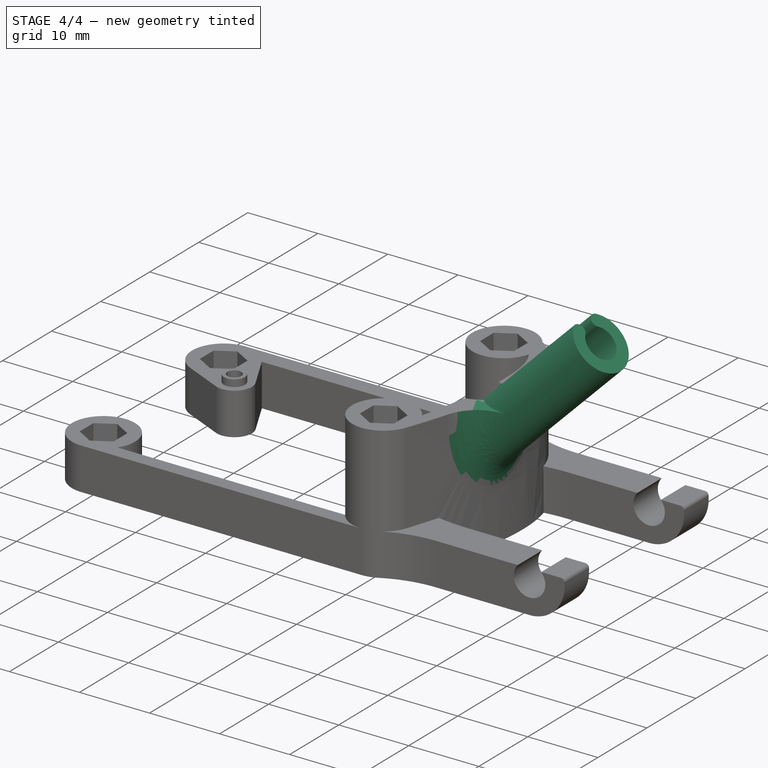
[diagram: stage 4 of 4 — iso view after this stage's code; geometry added in this stage tinted green]
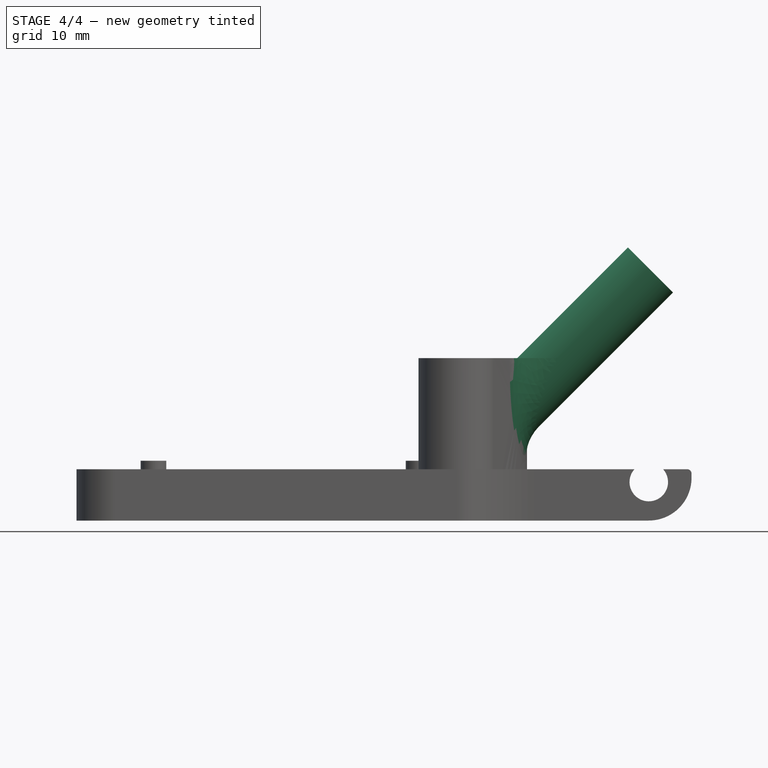
[diagram: stage 4 of 4 — front view after this stage's code; geometry added in this stage tinted green]
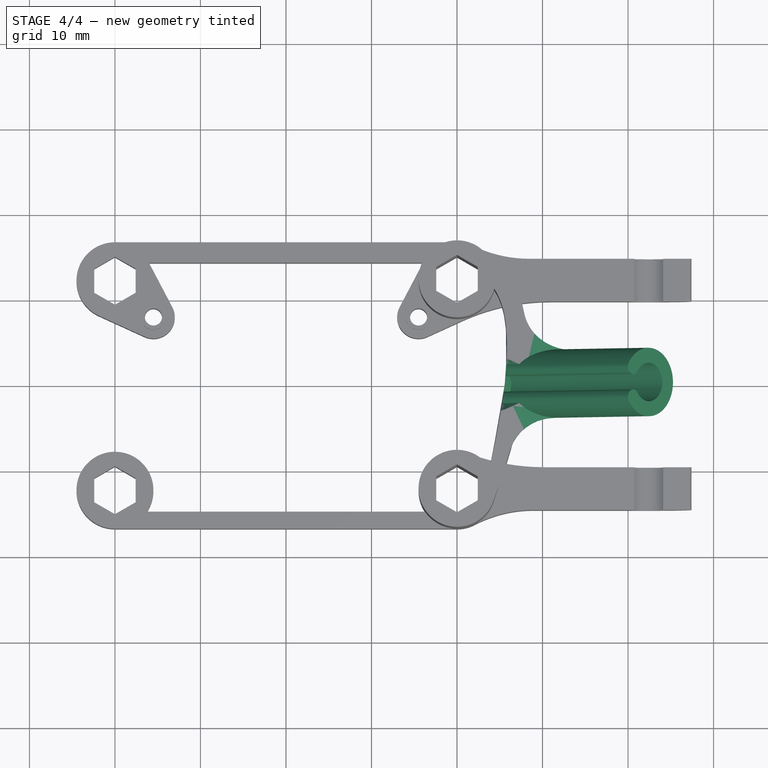
[diagram: stage 4 of 4 — top view after this stage's code; geometry added in this stage tinted green]
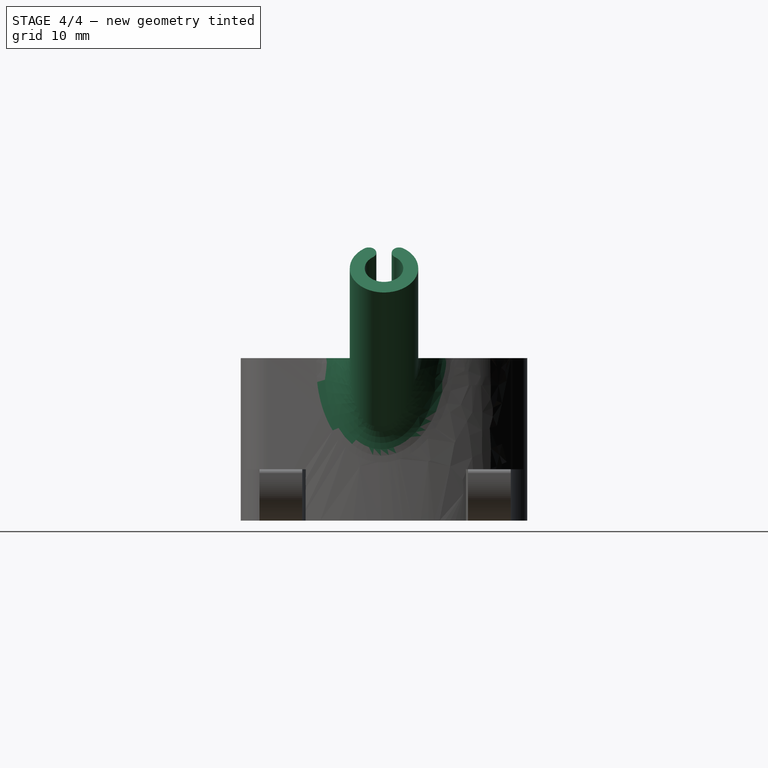
[diagram: stage 4 of 4 — right view after this stage's code; geometry added in this stage tinted green]
FEATURE [Sketcher::SketchObject] Sketch003
  ArcFitTolerance = 1e-06
  AttachmentOffset = pos=(20,0,20) rot=(0,1,0;0.785398rad)
  AttachmentSupport = -> [Pad,Binder]
  FullyConstrained = true
  MakeInternals = false
  MapMode = 45
  Placement = pos=(42.4249,-1.3e-15,29.5) rot=(0.382683,0,0.92388;3.14159rad)
  sketch-geometry (2):
    g0: Circle CenterX=0 CenterY=0 CenterZ=0 NormalX=0 NormalY=0 NormalZ=1 AngleXU=0 Radius=4
    g1: Circle CenterX=0 CenterY=0 CenterZ=0 NormalX=0 NormalY=0 NormalZ=1 AngleXU=0 Radius=2.25
  constraints (4):
    c: Diameter(g0) = 8
    c: Coincident(g0,g-1)
    c: Diameter(g1) = 4.5
    c: Coincident(g1,g0)
FEATURE [PartDesign::Pad] Pad001
  BaseFeature = -> Pad
  Direction = (0.707107,0,0.707107)
  Length = 10
  Length2 = 10
  Profile = -> Sketch003
  ReferenceAxis = -> Sketch003 [N_Axis]
  Refine = true
  Suppressed = false
  Type = 3
  UpToFace = -> Pad [Face4]
FEATURE [Sketcher::SketchObject] Sketch004
  ArcFitTolerance = 1e-06
  AttachmentSupport = -> [Pad001]
  ExternalGeometry = -> [Pad001]
  FullyConstrained = false
  MakeInternals = false
  MapMode = 5
  Placement = pos=(35.9624,-3.05e-14,35.9624) rot=(0,1,0;0.785398rad)
  sketch-geometry (13):
    g0: LineSegment [constr] StartX=9.13926 StartY=3.15e-14 StartZ=0 EndX=3.99291 EndY=-3.54648 EndZ=0
    g1: LineSegment [constr] StartX=9.13926 StartY=3.15e-14 StartZ=0 EndX=3.99291 EndY=3.54648 EndZ=0
    g2: ArcOfCircle CenterX=9.13926 CenterY=3.15e-14 CenterZ=0 NormalX=0 NormalY=0 NormalZ=1 AngleXU=0 Radius=2.25 StartAngle=3.74498 EndAngle=8.82139
    g3: ArcOfCircle CenterX=6.56608 CenterY=-1.77324 CenterZ=0 NormalX=0 NormalY=0 NormalZ=1 AngleXU=0 Radius=0.875 StartAngle=0.603389 EndAngle=3.74498
    g4: ArcOfCircle CenterX=6.56608 CenterY=1.77324 CenterZ=0 NormalX=0 NormalY=0 NormalZ=1 AngleXU=0 Radius=0.875 StartAngle=2.5382 EndAngle=5.6798
    g5: GeomPoint [constr] X=5.84559 Y=-2.26975 Z=0
    g6: GeomPoint [constr] X=0.110754 Y=0 Z=0
    g7: GeomPoint [constr] X=5.84559 Y=2.26975 Z=0
    g8: BSplineCurve PolesCount=4 KnotsCount=2 Degree=3 IsPeriodic=0
    g9-g12: Circle [constr] x4 (B-spline internal-alignment scaffolding for g8; pole/knot coordinates omitted)
  constraints (29):
    c: Coincident(g0,g-4)
    c: Coincident(g1,g0)
    c: Symmetric(g1,g0,g-1)
    c: Coincident(g2,g0)
    c: PointOnObject(g2,g0)
    c: PointOnObject(g2,g-4)
    c: Symmetric(g0,g0,g3)
    c: Coincident(g3,g2)
    c: PointOnObject(g3,g-3)
    c: PointOnObject(g3,g0)
    c: Symmetric(g1,g1,g4)
    c: PointOnObject(g4,g-3)
    c: Coincident(g4,g2)
    c: PointOnObject(g4,g1)
    c: InternalAlignment(g5,g8)
    c: PointOnObject(g6,g8)
    c: InternalAlignment(g7,g8)
    c: InternalAlignment(g9,g8)
    c: Weight(g9) = 1
    c: InternalAlignment(g10,g8)
    c: Equal(g10,g9)
    c: InternalAlignment(g11,g8)
    c: Equal(g11,g9)
    c: InternalAlignment(g12,g8)
    c: Equal(g12,g9)
    c: Coincident(g5,g3)
    c: PointOnObject(g6,g-1)
    c: Coincident(g7,g4)
    c: Symmetric(g11,g10,g-1)
FEATURE [PartDesign::Pocket] Pocket
  BaseFeature = -> Pad001
  Direction = (-0.707107,0,-0.707107)
  Length = 25
  Length2 = 5
  Profile = -> Sketch004
  ReferenceAxis = -> Sketch004 [N_Axis]
  Refine = true
  Suppressed = false
  Type = 0
FEATURE [PartDesign::Fillet] Fillet
  Base = -> Pocket [Edge8]
  BaseFeature = -> Pocket
  Radius = 6
  Refine = true
  SupportTransform = false
  Suppressed = false
  UseAllEdges = false
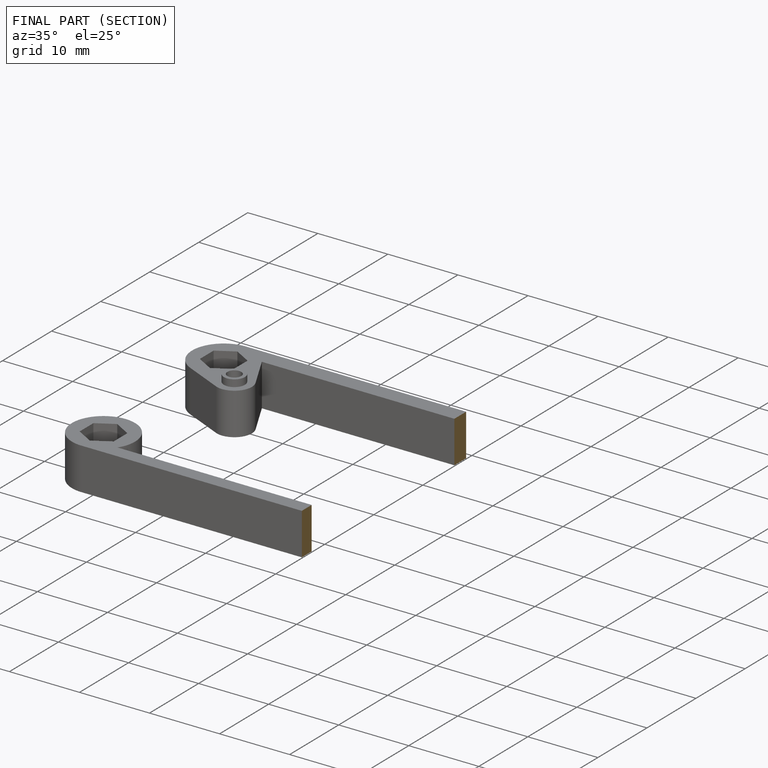
[diagram: finished part — half-section view (interior)]
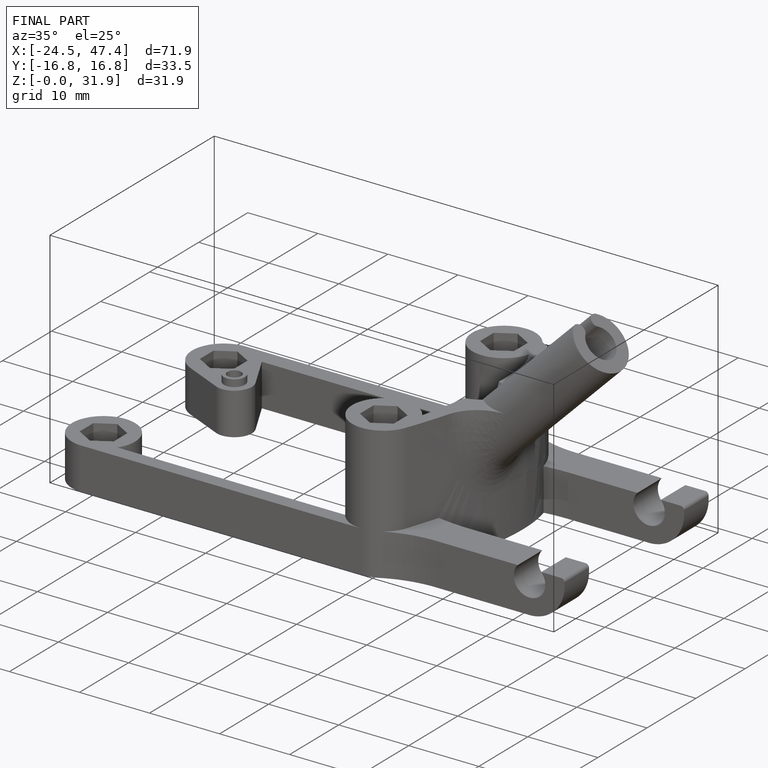
[diagram: finished part — iso view with bounding-box wireframe]
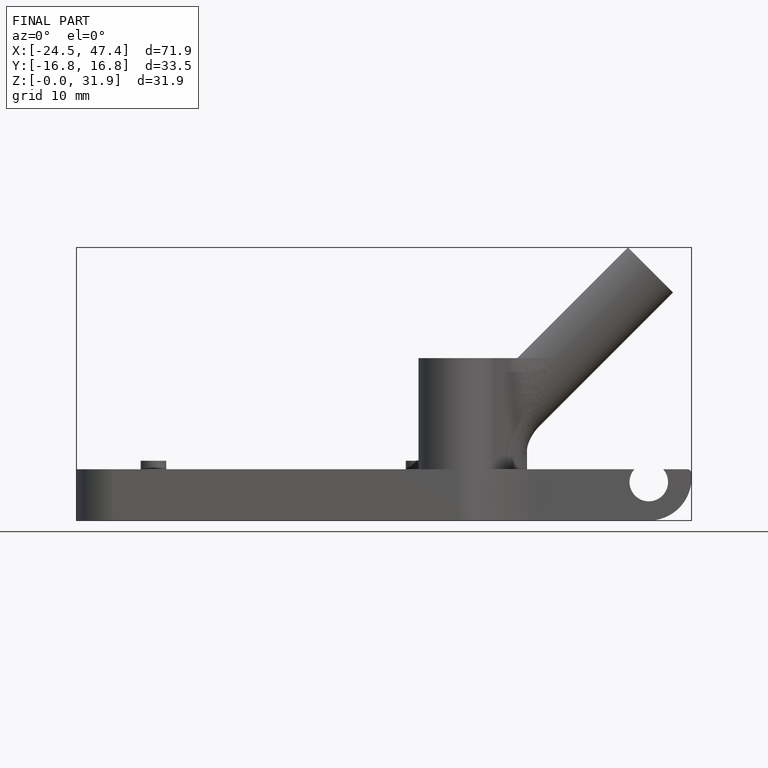
[diagram: finished part — front view with bounding-box wireframe]
